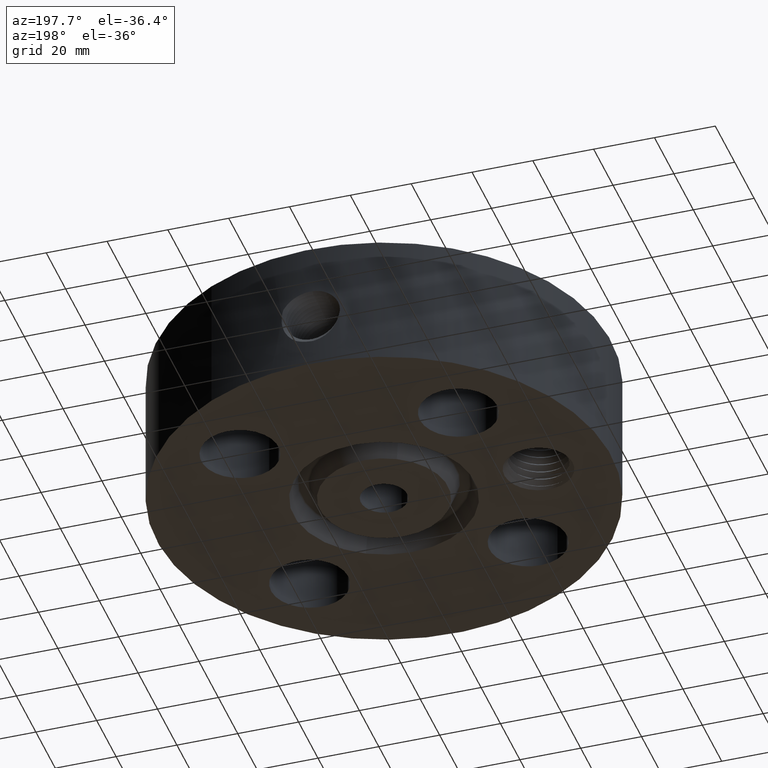
[diagram: clean part render]
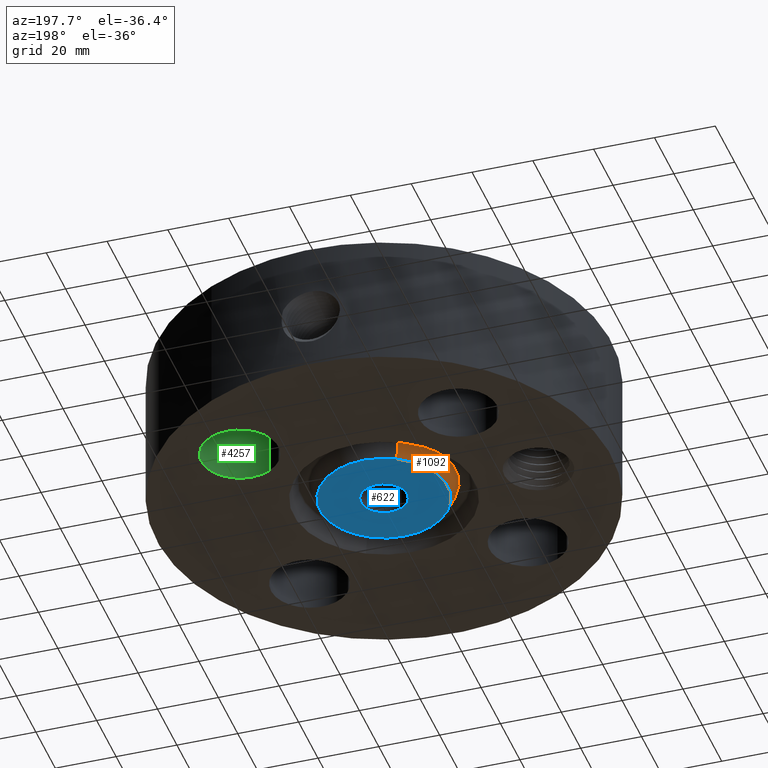
[diagram: same view with three faces highlighted in distinct colors, each labeled with its STEP entity id]
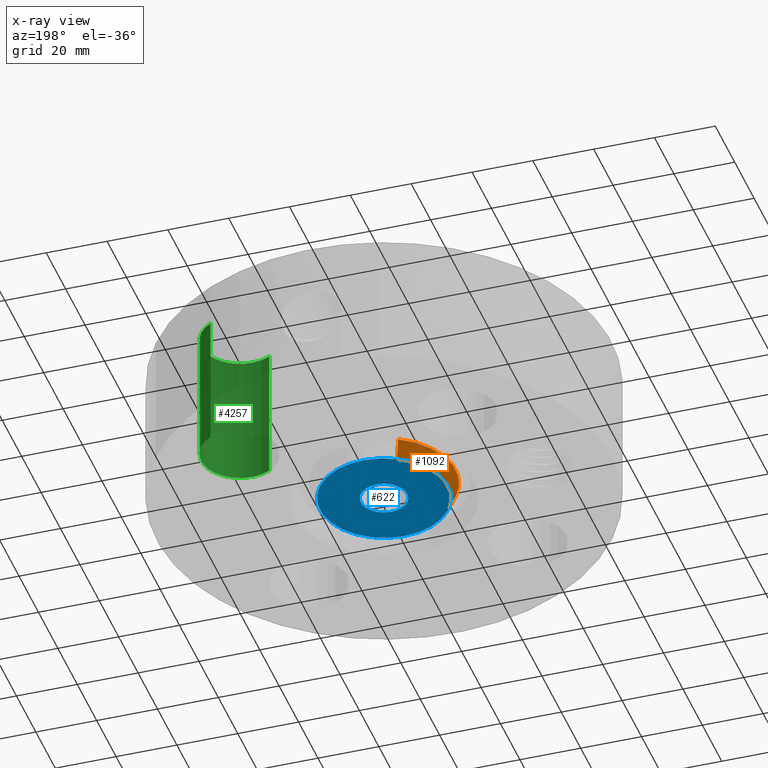
[diagram: x-ray of the same camera — body ghosted, the three highlighted faces saturated]
A machine part, auxiliary view with three faces highlighted in distinct colors.
The next image is the same camera in x-ray (body ghosted, the three faces saturated) — at least one of them is partly hidden behind the body in this view.
Their STEP definitions:

[orange] entity #1092 — the highlighted conical surface has half-angle 23 deg.
#611=AXIS2_PLACEMENT_3D('Circle Axis2P3D',#609,#610,$) ;
#1053=AXIS2_PLACEMENT_3D('Cone Axis2P3D',#1050,#1051,#1052) ;
#1083=AXIS2_PLACEMENT_3D('Circle Axis2P3D',#1081,#1082,$) ;
#604=CARTESIAN_POINT('Vertex',(-0.396964345966,0.726638361248,0.)) ;
#606=CARTESIAN_POINT('Vertex',(0.396964345966,-0.726638361248,0.)) ;
#609=CARTESIAN_POINT('Axis2P3D Location',(-6.99353086378E-017,3.49676543189E-017,0.)) ;
#1050=CARTESIAN_POINT('Axis2P3D Location',(0.,0.,-0.0600000000002)) ;
#1055=CARTESIAN_POINT('Line Origine',(-0.420542523987,0.769797926616,0.115860966928)) ;
#1059=CARTESIAN_POINT('Vertex',(-0.444120702008,0.812957491984,0.231721933856)) ;
#1066=CARTESIAN_POINT('Vertex',(0.444120702008,-0.812957491984,0.231721933856)) ;
#1069=CARTESIAN_POINT('Line Origine',(0.420542523987,-0.769797926616,0.115860966928)) ;
#1081=CARTESIAN_POINT('Axis2P3D Location',(0.,0.,0.231721933856)) ;
#610=DIRECTION('Axis2P3D Direction',(0.,0.,-0.0393700787402)) ;
#1051=DIRECTION('Axis2P3D Direction',(0.,0.,0.0393700787402)) ;
#1052=DIRECTION('Axis2P3D XDirection',(-0.0188750212049,0.0345504945626,0.)) ;
#1056=DIRECTION('Vector Direction',(-0.00737505833565,0.0134999537303,0.0362403485611)) ;
#1070=DIRECTION('Vector Direction',(0.00737505833565,-0.0134999537303,0.0362403485611)) ;
#1082=DIRECTION('Axis2P3D Direction',(0.,0.,0.0393700787402)) ;
#1057=VECTOR('Line Direction',#1056,0.0393700787402) ;
#1071=VECTOR('Line Direction',#1070,0.0393700787402) ;
#1087=ORIENTED_EDGE('',*,*,#1073,.F.) ;
#1088=ORIENTED_EDGE('',*,*,#1085,.F.) ;
#1089=ORIENTED_EDGE('',*,*,#1061,.T.) ;
#1090=ORIENTED_EDGE('',*,*,#613,.F.) ;
#1092=ADVANCED_FACE('PartBody',(#1091),#1054,.T.) ;
#612=CIRCLE('generated circle',#611,0.828000000003) ;
#1084=CIRCLE('generated circle',#1083,0.926360125288) ;
#1054=CONICAL_SURFACE('Cone',#1053,0.802531511031,0.401425727959) ;
#613=EDGE_CURVE('',#607,#605,#612,.T.) ;
#1061=EDGE_CURVE('',#1060,#605,#1058,.F.) ;
#1073=EDGE_CURVE('',#1067,#607,#1072,.F.) ;
#1085=EDGE_CURVE('',#1060,#1067,#1084,.T.) ;
#1086=EDGE_LOOP('',(#1087,#1088,#1089,#1090)) ;
#1091=FACE_OUTER_BOUND('',#1086,.T.) ;
#1058=LINE('Line',#1055,#1057) ;
#1072=LINE('Line',#1069,#1071) ;
#605=VERTEX_POINT('',#604) ;
#607=VERTEX_POINT('',#606) ;
#1060=VERTEX_POINT('',#1059) ;
#1067=VERTEX_POINT('',#1066) ;

[blue] entity #622 — the highlighted planar face has unit normal (0, 0, -1).
#252=AXIS2_PLACEMENT_3D('Circle Axis2P3D',#250,#251,$) ;
#543=AXIS2_PLACEMENT_3D('Circle Axis2P3D',#541,#542,$) ;
#598=AXIS2_PLACEMENT_3D('Plane Axis2P3D',#595,#596,#597) ;
#602=AXIS2_PLACEMENT_3D('Circle Axis2P3D',#600,#601,$) ;
#611=AXIS2_PLACEMENT_3D('Circle Axis2P3D',#609,#610,$) ;
#247=CARTESIAN_POINT('Vertex',(0.143587948813,0.262835977287,-5.59482469102E-015)) ;
#250=CARTESIAN_POINT('Axis2P3D Location',(0.,0.,-6.15430716013E-015)) ;
#254=CARTESIAN_POINT('Vertex',(-0.143587948813,-0.262835977287,-5.59482469102E-015)) ;
#541=CARTESIAN_POINT('Axis2P3D Location',(0.,0.,-6.15430716013E-015)) ;
#595=CARTESIAN_POINT('Axis2P3D Location',(0.,0.299500000001,0.)) ;
#600=CARTESIAN_POINT('Axis2P3D Location',(0.,-6.99353086378E-017,0.)) ;
#604=CARTESIAN_POINT('Vertex',(-0.396964345966,0.726638361248,0.)) ;
#606=CARTESIAN_POINT('Vertex',(0.396964345966,-0.726638361248,0.)) ;
#609=CARTESIAN_POINT('Axis2P3D Location',(-6.99353086378E-017,3.49676543189E-017,0.)) ;
#251=DIRECTION('Axis2P3D Direction',(0.,0.,-0.0393700787402)) ;
#542=DIRECTION('Axis2P3D Direction',(0.,0.,-0.0393700787402)) ;
#596=DIRECTION('Axis2P3D Direction',(0.,0.,-0.0393700787402)) ;
#597=DIRECTION('Axis2P3D XDirection',(0.0393700787402,0.,0.)) ;
#601=DIRECTION('Axis2P3D Direction',(0.,0.,-0.0393700787402)) ;
#610=DIRECTION('Axis2P3D Direction',(0.,0.,-0.0393700787402)) ;
#615=ORIENTED_EDGE('',*,*,#608,.T.) ;
#616=ORIENTED_EDGE('',*,*,#613,.T.) ;
#619=ORIENTED_EDGE('',*,*,#256,.F.) ;
#620=ORIENTED_EDGE('',*,*,#545,.F.) ;
#621=FACE_BOUND('',#618,.T.) ;
#622=ADVANCED_FACE('PartBody',(#617,#621),#599,.T.) ;
#253=CIRCLE('generated circle',#252,0.299500000001) ;
#544=CIRCLE('generated circle',#543,0.299500000001) ;
#603=CIRCLE('generated circle',#602,0.828000000003) ;
#612=CIRCLE('generated circle',#611,0.828000000003) ;
#256=EDGE_CURVE('',#248,#255,#253,.T.) ;
#545=EDGE_CURVE('',#255,#248,#544,.T.) ;
#608=EDGE_CURVE('',#605,#607,#603,.T.) ;
#613=EDGE_CURVE('',#607,#605,#612,.T.) ;
#614=EDGE_LOOP('',(#615,#616)) ;
#618=EDGE_LOOP('',(#619,#620)) ;
#617=FACE_OUTER_BOUND('',#614,.T.) ;
#599=PLANE('',#598) ;
#248=VERTEX_POINT('',#247) ;
#255=VERTEX_POINT('',#254) ;
#605=VERTEX_POINT('',#604) ;
#607=VERTEX_POINT('',#606) ;

[green] entity #4257 — the highlighted cylindrical surface (partial cylindrical patch) has radius 12.7 mm, axis along (0, 0, -1).
#3012=AXIS2_PLACEMENT_3D('Circle Axis2P3D',#3010,#3011,$) ;
#4218=AXIS2_PLACEMENT_3D('Cylinder Axis2P3D',#4215,#4216,#4217) ;
#4248=AXIS2_PLACEMENT_3D('Circle Axis2P3D',#4246,#4247,$) ;
#3010=CARTESIAN_POINT('Axis2P3D Location',(1.41421356238,1.41421356238,1.75000000001)) ;
#3014=CARTESIAN_POINT('Vertex',(1.65392633168,1.85300484333,1.75000000001)) ;
#3016=CARTESIAN_POINT('Vertex',(1.17450079308,0.975422281432,1.75000000001)) ;
#4215=CARTESIAN_POINT('Axis2P3D Location',(1.41421356238,1.41421356238,1.74606299213)) ;
#4220=CARTESIAN_POINT('Line Origine',(1.17450079308,0.975422281432,0.875000000003)) ;
#4224=CARTESIAN_POINT('Vertex',(1.17450079308,0.975422281432,0.)) ;
#4231=CARTESIAN_POINT('Vertex',(1.65392633168,1.85300484333,0.)) ;
#4234=CARTESIAN_POINT('Line Origine',(1.65392633168,1.85300484333,0.875000000003)) ;
#4246=CARTESIAN_POINT('Axis2P3D Location',(1.41421356238,1.41421356238,0.)) ;
#3011=DIRECTION('Axis2P3D Direction',(0.,0.,-0.0393700787402)) ;
#4216=DIRECTION('Axis2P3D Direction',(0.,0.,-0.0393700787402)) ;
#4217=DIRECTION('Axis2P3D XDirection',(0.0188750212049,0.0345504945626,0.)) ;
#4221=DIRECTION('Vector Direction',(0.,0.,-0.0393700787402)) ;
#4235=DIRECTION('Vector Direction',(0.,0.,-0.0393700787402)) ;
#4247=DIRECTION('Axis2P3D Direction',(0.,0.,-0.0393700787402)) ;
#4222=VECTOR('Line Direction',#4221,0.0393700787402) ;
#4236=VECTOR('Line Direction',#4235,0.0393700787402) ;
#4252=ORIENTED_EDGE('',*,*,#4238,.F.) ;
#4253=ORIENTED_EDGE('',*,*,#4250,.T.) ;
#4254=ORIENTED_EDGE('',*,*,#4226,.T.) ;
#4255=ORIENTED_EDGE('',*,*,#3018,.F.) ;
#4257=ADVANCED_FACE('PartBody',(#4256),#4219,.F.) ;
#3013=CIRCLE('generated circle',#3012,0.500000000002) ;
#4249=CIRCLE('generated circle',#4248,0.500000000002) ;
#4219=CYLINDRICAL_SURFACE('generated cylinder',#4218,0.500000000002) ;
#3018=EDGE_CURVE('',#3015,#3017,#3013,.T.) ;
#4226=EDGE_CURVE('',#4225,#3017,#4223,.F.) ;
#4238=EDGE_CURVE('',#4232,#3015,#4237,.F.) ;
#4250=EDGE_CURVE('',#4232,#4225,#4249,.T.) ;
#4251=EDGE_LOOP('',(#4252,#4253,#4254,#4255)) ;
#4256=FACE_OUTER_BOUND('',#4251,.T.) ;
#4223=LINE('Line',#4220,#4222) ;
#4237=LINE('Line',#4234,#4236) ;
#3015=VERTEX_POINT('',#3014) ;
#3017=VERTEX_POINT('',#3016) ;
#4225=VERTEX_POINT('',#4224) ;
#4232=VERTEX_POINT('',#4231) ;